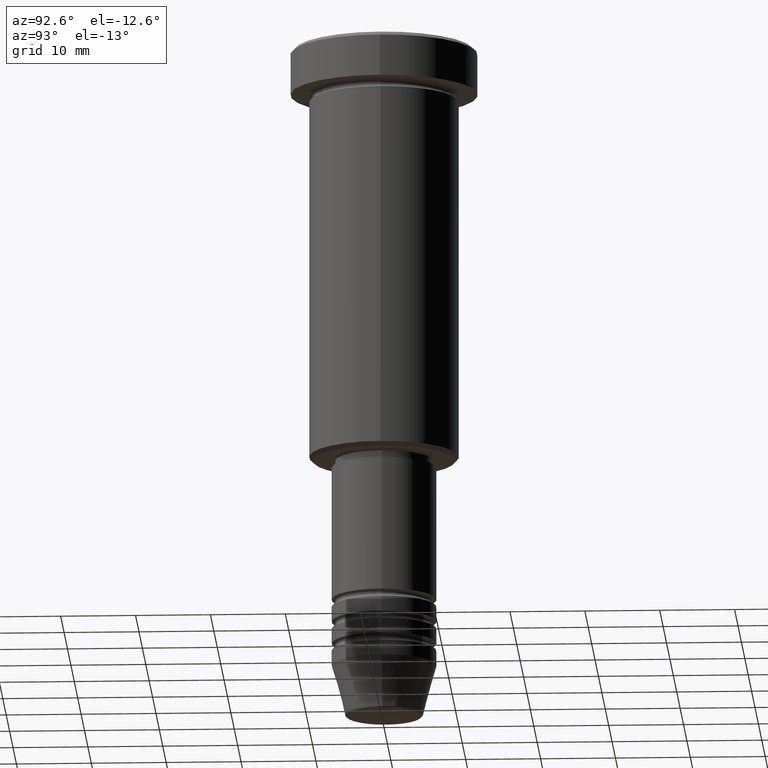
[diagram: clean part render]
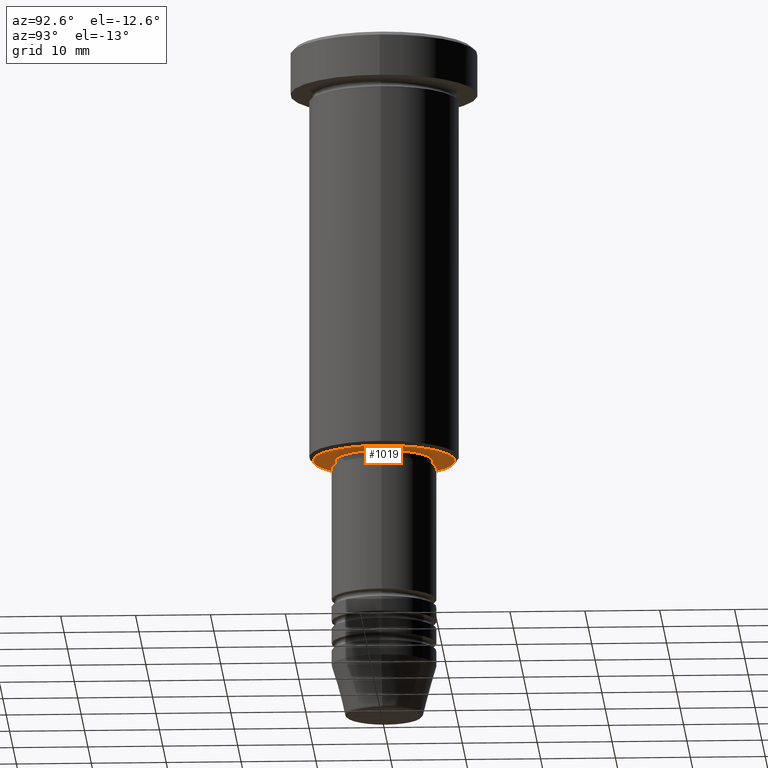
[diagram: same view with one face highlighted and labeled with its STEP entity id]
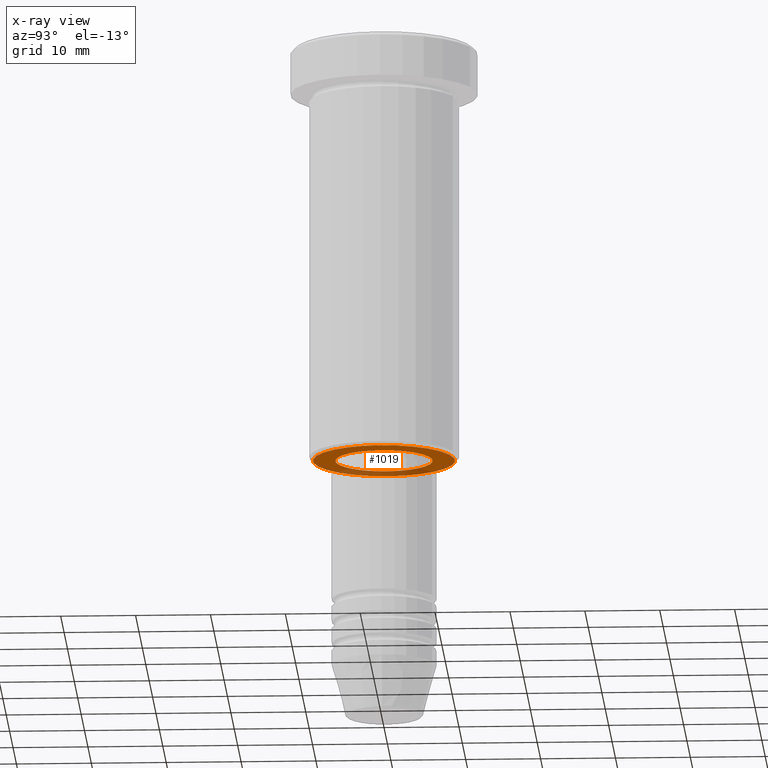
[diagram: x-ray of the same camera — body ghosted, the highlighted face saturated]
A machine part, auxiliary view. The second image highlights one B-rep face of the part: STEP entity #1019.
The next image is the same camera in x-ray: the body ghosted, the highlighted face saturated — about 24% of this face is hidden behind the body in this view.
In plain terms, the highlighted planar face has unit normal (0, 0, -1).
Its self-contained STEP definition (entity closure, byte-faithful):
#2 = VERTEX_POINT ( 'NONE', #354 ) ;
#50 = DIRECTION ( 'NONE',  ( -1.000000000000000000, 0.000000000000000000, 0.000000000000000000 ) ) ;
#70 = AXIS2_PLACEMENT_3D ( 'NONE', #487, #856, #50 ) ;
#77 = CARTESIAN_POINT ( 'NONE',  ( 0.000000000000000000, 0.000000000000000000, -56.00000000000000711 ) ) ;
#153 = CARTESIAN_POINT ( 'NONE',  ( 6.500000000000000000, 0.000000000000000000, -56.00000000000000711 ) ) ;
#174 = DIRECTION ( 'NONE',  ( 1.000000000000000000, 0.000000000000000000, 0.000000000000000000 ) ) ;
#178 = DIRECTION ( 'NONE',  ( -0.000000000000000000, -0.000000000000000000, 1.000000000000000000 ) ) ;
#226 = EDGE_CURVE ( 'NONE', #441, #1107, #1050, .T. ) ;
#278 = DIRECTION ( 'NONE',  ( 1.000000000000000000, 0.000000000000000000, 0.000000000000000000 ) ) ;
#328 = AXIS2_PLACEMENT_3D ( 'NONE', #352, #366, #1003 ) ;
#332 = CARTESIAN_POINT ( 'NONE',  ( 9.500000000000008882, 0.000000000000000000, -56.00000000000000711 ) ) ;
#352 = CARTESIAN_POINT ( 'NONE',  ( 0.000000000000000000, 0.000000000000000000, -56.00000000000000711 ) ) ;
#354 = CARTESIAN_POINT ( 'NONE',  ( -9.500000000000008882, 1.194030629168669864E-15, -56.00000000000000711 ) ) ;
#366 = DIRECTION ( 'NONE',  ( 0.000000000000000000, 0.000000000000000000, -1.000000000000000000 ) ) ;
#378 = ORIENTED_EDGE ( 'NONE', *, *, #667, .T. ) ;
#382 = CIRCLE ( 'NONE', #70, 9.500000000000008882 ) ;
#412 = CARTESIAN_POINT ( 'NONE',  ( -6.500000000000000000, 7.960204194457795477E-16, -56.00000000000000711 ) ) ;
#441 = VERTEX_POINT ( 'NONE', #412 ) ;
#487 = CARTESIAN_POINT ( 'NONE',  ( 0.000000000000000000, 0.000000000000000000, -56.00000000000000711 ) ) ;
#535 = CIRCLE ( 'NONE', #328, 9.500000000000008882 ) ;
#544 = ORIENTED_EDGE ( 'NONE', *, *, #1006, .T. ) ;
#589 = AXIS2_PLACEMENT_3D ( 'NONE', #77, #178, #278 ) ;
#615 = DIRECTION ( 'NONE',  ( -1.000000000000000000, 0.000000000000000000, -0.000000000000000000 ) ) ;
#667 = EDGE_CURVE ( 'NONE', #2, #1102, #382, .T. ) ;
#721 = DIRECTION ( 'NONE',  ( 0.000000000000000000, 0.000000000000000000, -1.000000000000000000 ) ) ;
#729 = PLANE ( 'NONE',  #1027 ) ;
#856 = DIRECTION ( 'NONE',  ( 0.000000000000000000, 0.000000000000000000, -1.000000000000000000 ) ) ;
#859 = AXIS2_PLACEMENT_3D ( 'NONE', #915, #1084, #174 ) ;
#905 = FACE_BOUND ( 'NONE', #1099, .T. ) ;
#915 = CARTESIAN_POINT ( 'NONE',  ( 0.000000000000000000, 0.000000000000000000, -56.00000000000000711 ) ) ;
#981 = EDGE_CURVE ( 'NONE', #1102, #2, #535, .T. ) ;
#982 = FACE_OUTER_BOUND ( 'NONE', #1160, .T. ) ;
#1003 = DIRECTION ( 'NONE',  ( -1.000000000000000000, 0.000000000000000000, 0.000000000000000000 ) ) ;
#1006 = EDGE_CURVE ( 'NONE', #1107, #441, #1104, .T. ) ;
#1017 = ORIENTED_EDGE ( 'NONE', *, *, #981, .T. ) ;
#1019 = ADVANCED_FACE ( 'NONE', ( #982, #905 ), #729, .T. ) ;
#1027 = AXIS2_PLACEMENT_3D ( 'NONE', #1076, #721, #615 ) ;
#1050 = CIRCLE ( 'NONE', #859, 6.500000000000000000 ) ;
#1064 = ORIENTED_EDGE ( 'NONE', *, *, #226, .T. ) ;
#1076 = CARTESIAN_POINT ( 'NONE',  ( 0.000000000000000000, 10.00000000000000000, -56.00000000000000711 ) ) ;
#1084 = DIRECTION ( 'NONE',  ( -0.000000000000000000, -0.000000000000000000, 1.000000000000000000 ) ) ;
#1099 = EDGE_LOOP ( 'NONE', ( #544, #1064 ) ) ;
#1102 = VERTEX_POINT ( 'NONE', #332 ) ;
#1104 = CIRCLE ( 'NONE', #589, 6.500000000000000000 ) ;
#1107 = VERTEX_POINT ( 'NONE', #153 ) ;
#1160 = EDGE_LOOP ( 'NONE', ( #1017, #378 ) ) ;